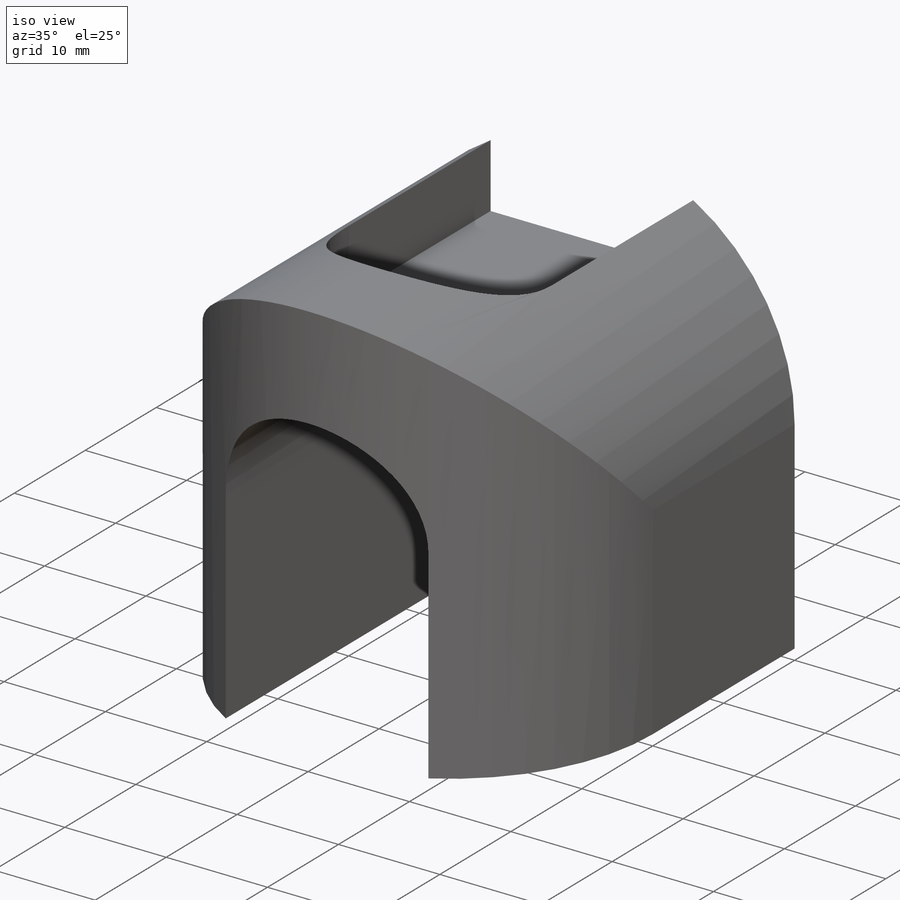
[diagram: iso view]
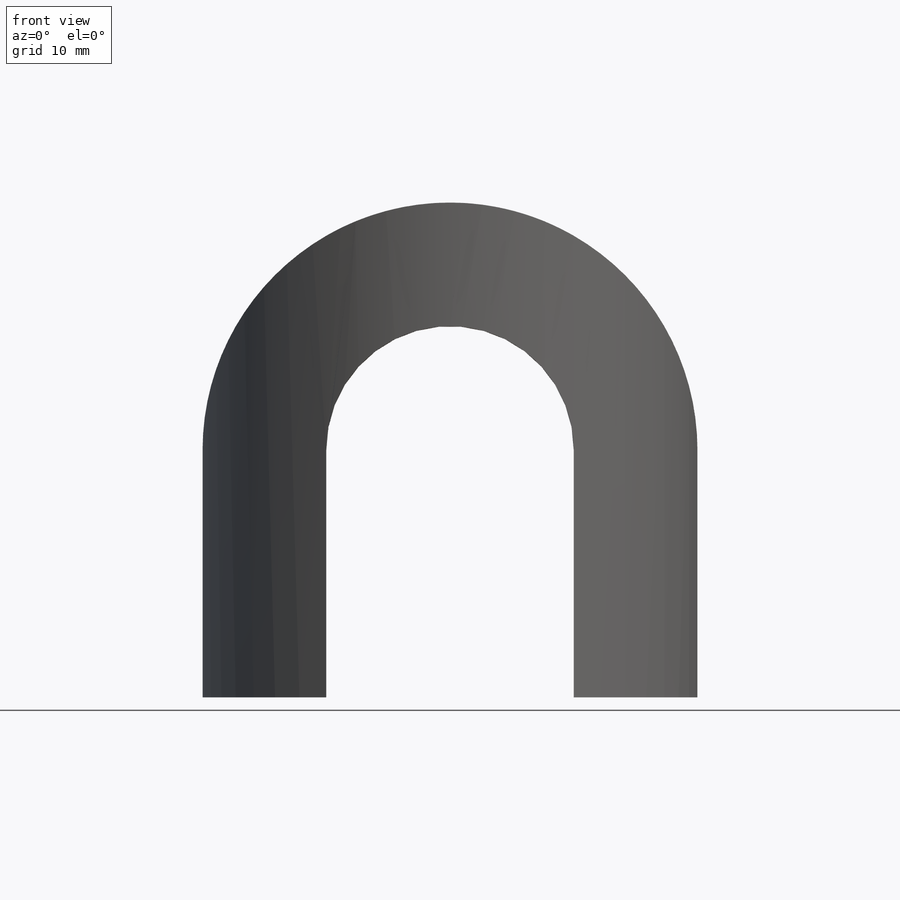
[diagram: front view]
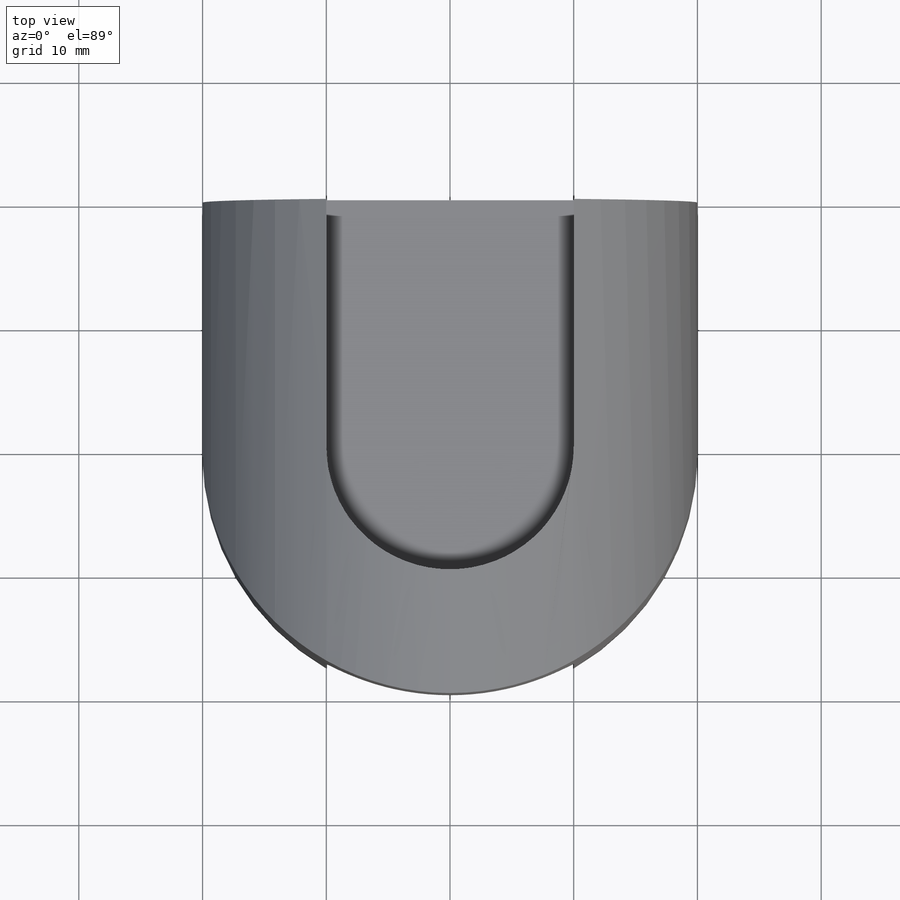
[diagram: top view]
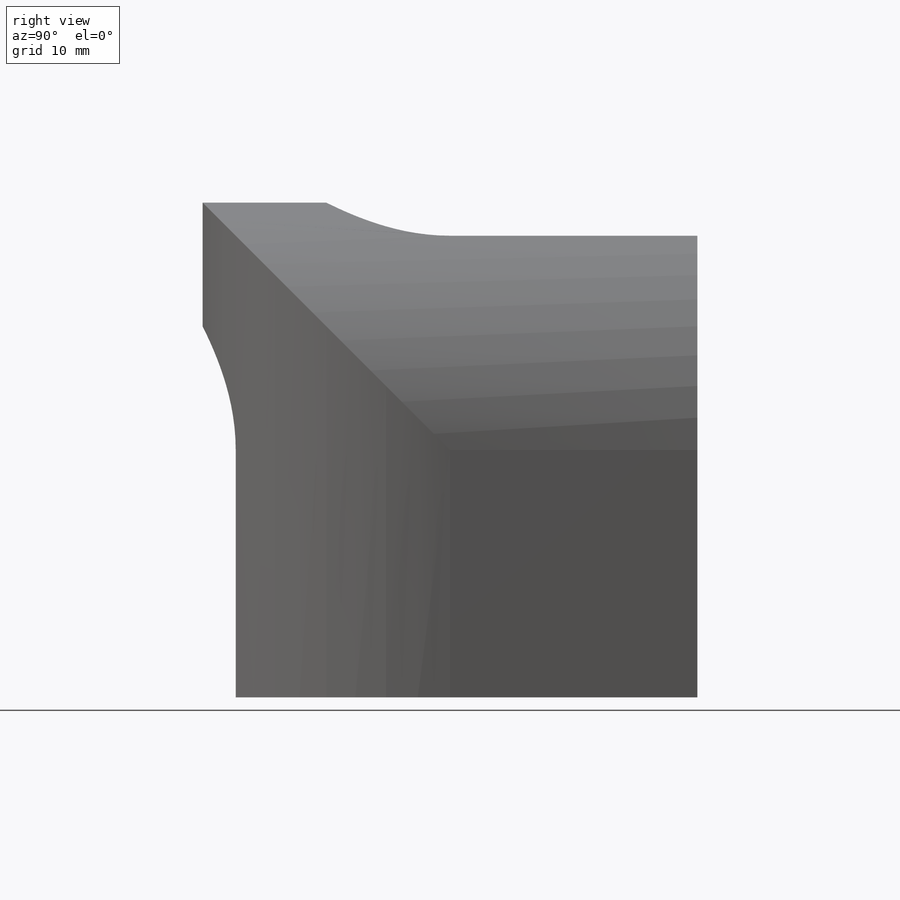
[diagram: right view]
SOLIDWORKS PART (.sldprt)
format: sldprt  version: not decoded by parser v0  size: 184,832 bytes
history: native  units: mm
features: sketch x4, extrude x2, cut_extrude x2, material x1, plane x1 (+13 scaffold rows collapsed)
feature tree (23):
  scaffold x13  (default folders/planes/origin — collapsed)
  material  "Material <not specified>"
  sketch  "Sketch1"  dims[D1=10.0mm D2=20.0mm D3=20.0mm D4=40.0mm]
  extrude  "Boss-Extrude2"  Depth=40mm
  sketch  "Sketch2"
  extrude  "Boss-Extrude3"  Depth=20mm
  sketch  "Sketch3"  dims[D2=20.0mm D1=20.0mm]
  cut_extrude  "Cut-Extrude1"  Depth=20mm
  plane  "Plane1"  Offset=11mm
  sketch  "Sketch6"  dims[D1=20.0mm D2=10.0mm D3=20.0mm D4=20.0mm D5=20.0mm D6=0.0mm]
  cut_extrude  "Cut-Extrude4"  Depth=51mm
decode coverage: 7 of 8 modeling features carry decoded parameters
note: suppression state not decoded; provenance and decode notes live in map.json
